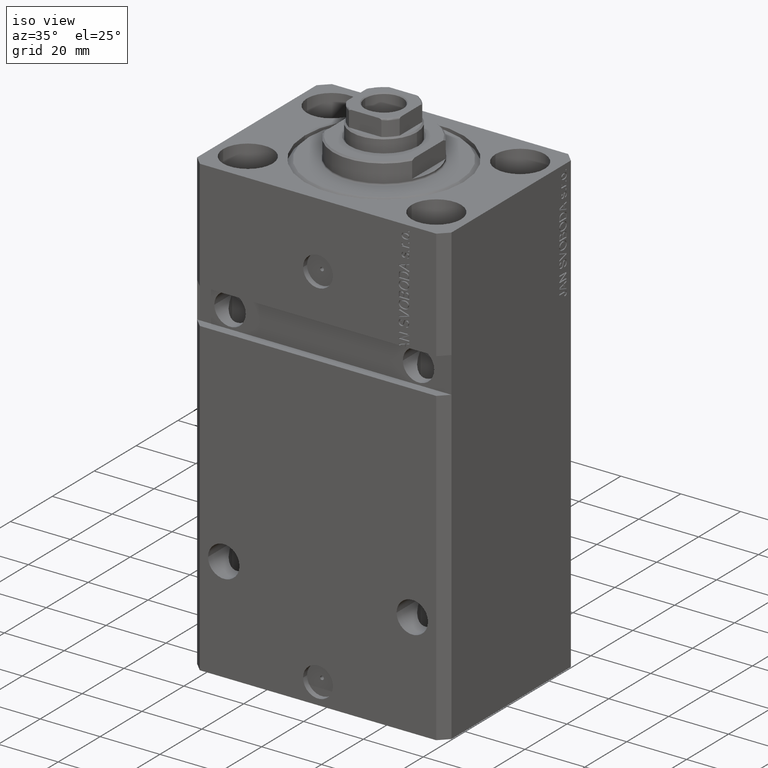
[diagram: clean part render]
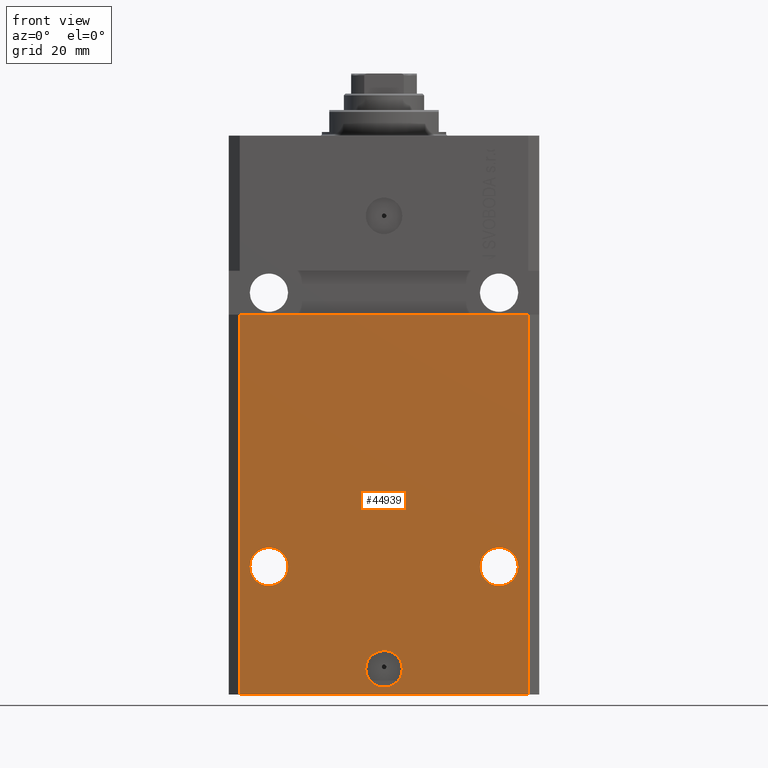
[diagram: tour spotlight — one face highlighted and labeled with its STEP entity id]
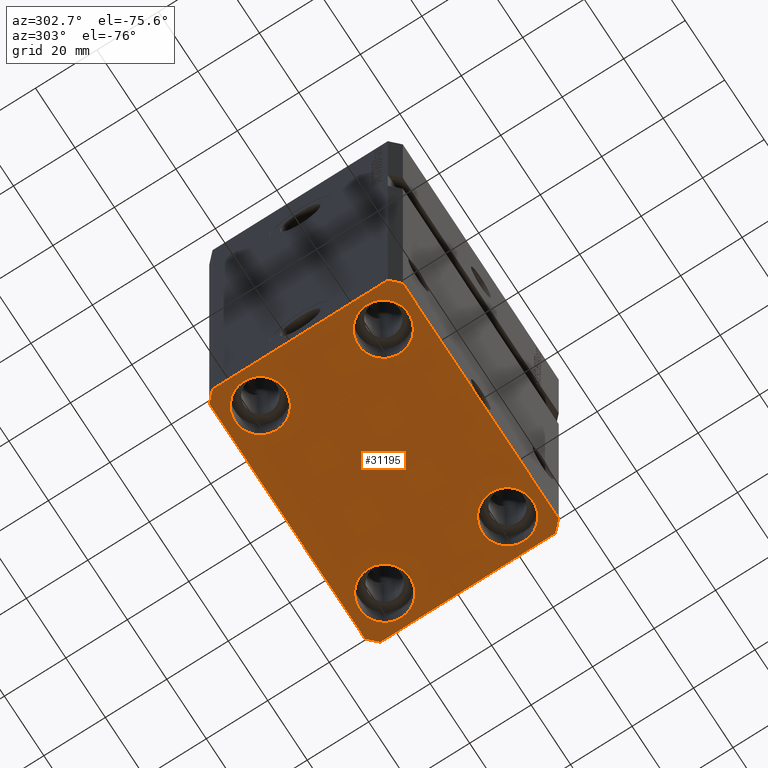
[diagram: tour spotlight — one face highlighted and labeled with its STEP entity id]
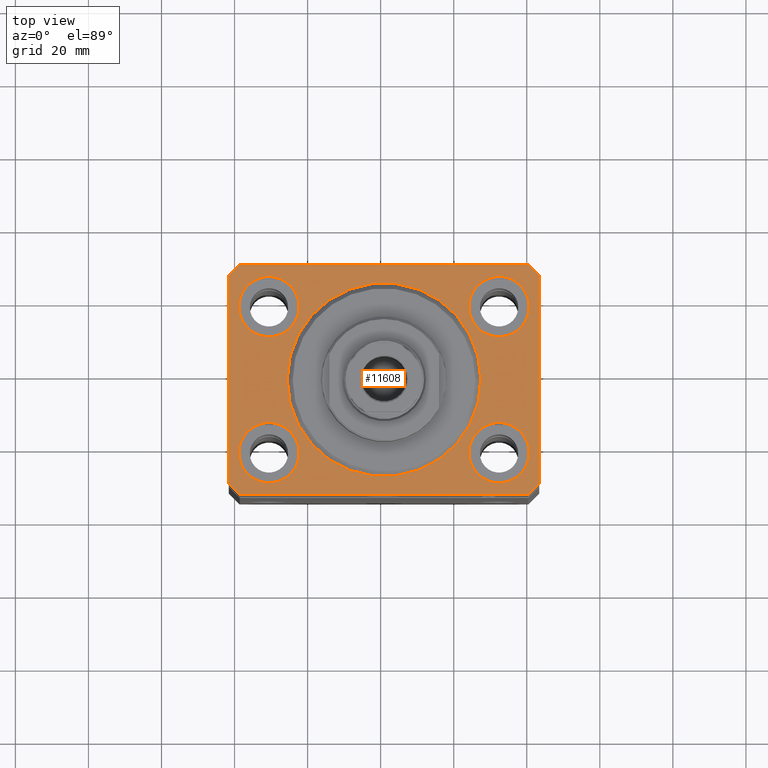
[diagram: tour spotlight — one face highlighted and labeled with its STEP entity id]
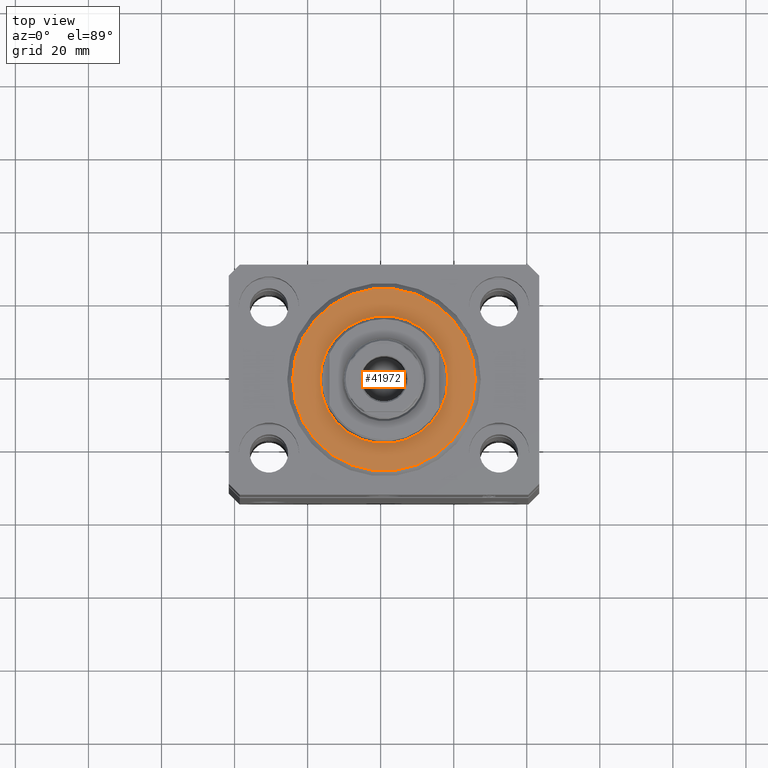
[diagram: tour spotlight — one face highlighted and labeled with its STEP entity id]
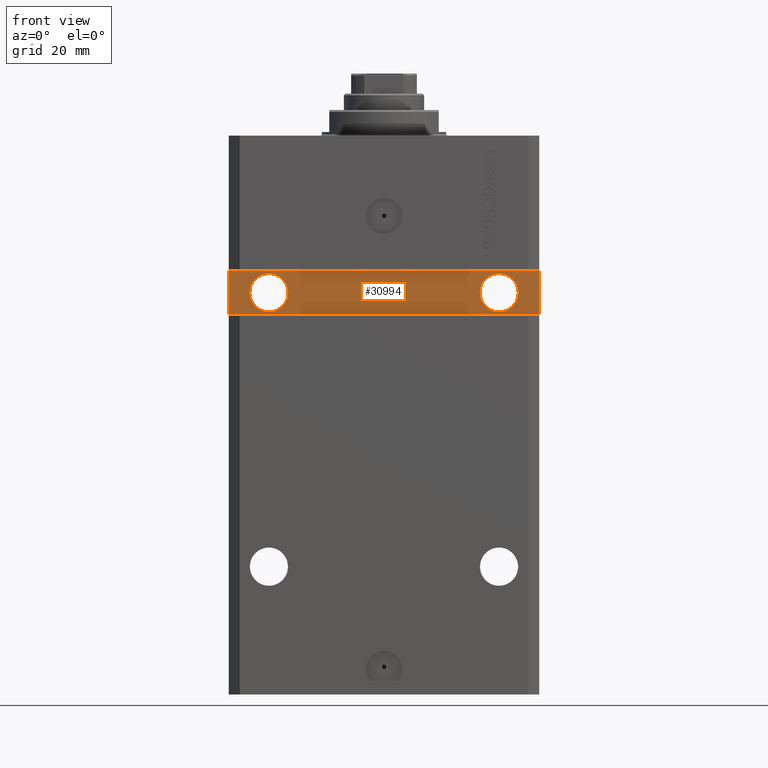
[diagram: tour spotlight — one face highlighted and labeled with its STEP entity id]
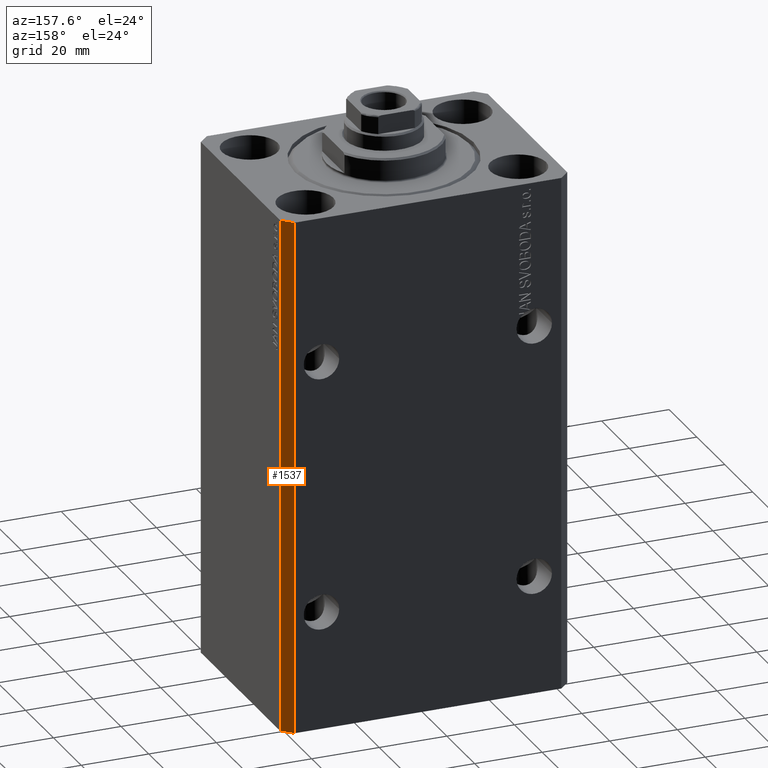
[diagram: tour spotlight — one face highlighted and labeled with its STEP entity id]
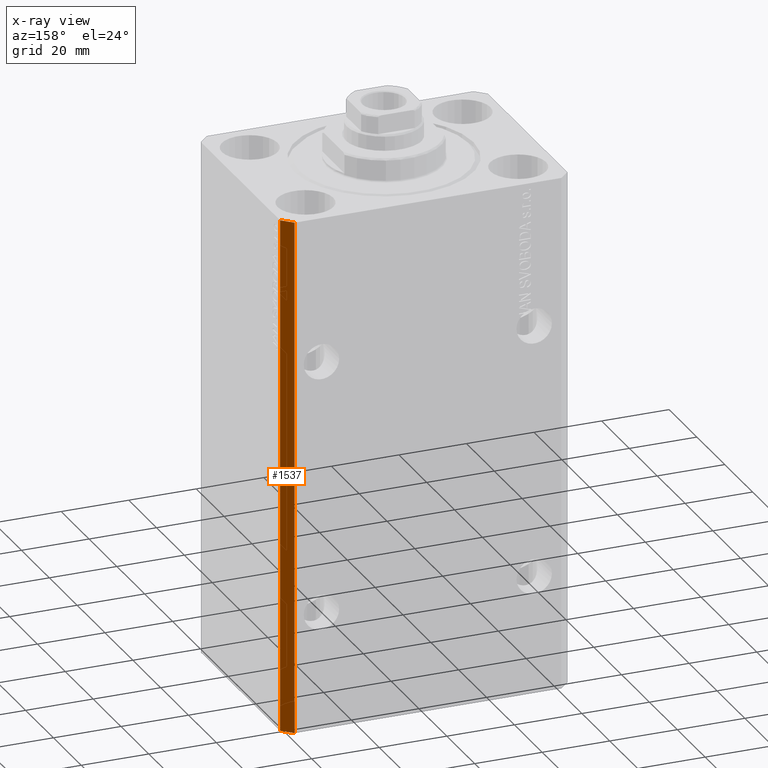
[diagram: x-ray of the same camera — body ghosted, this tour face saturated]
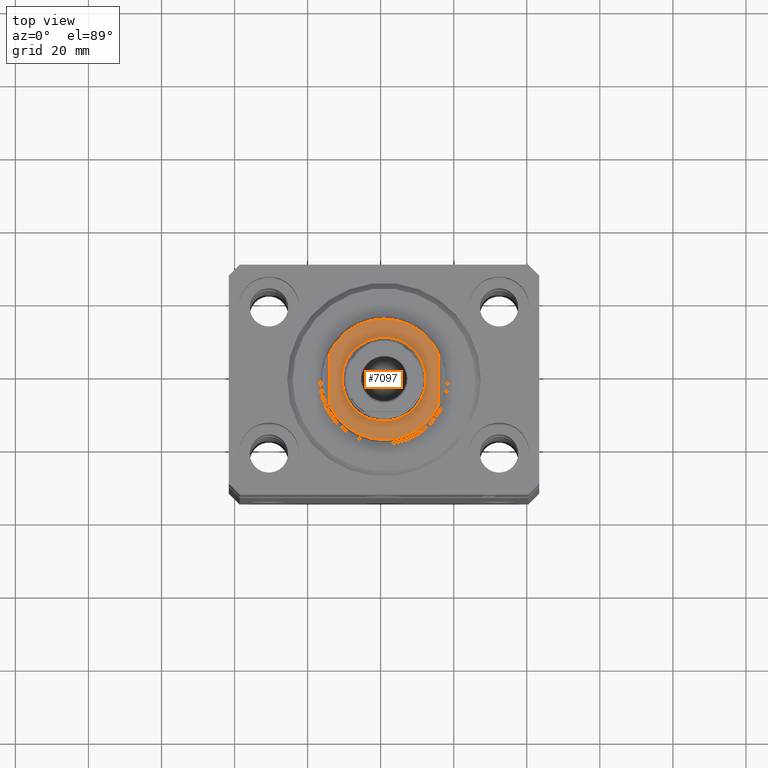
[diagram: tour spotlight — one face highlighted and labeled with its STEP entity id]
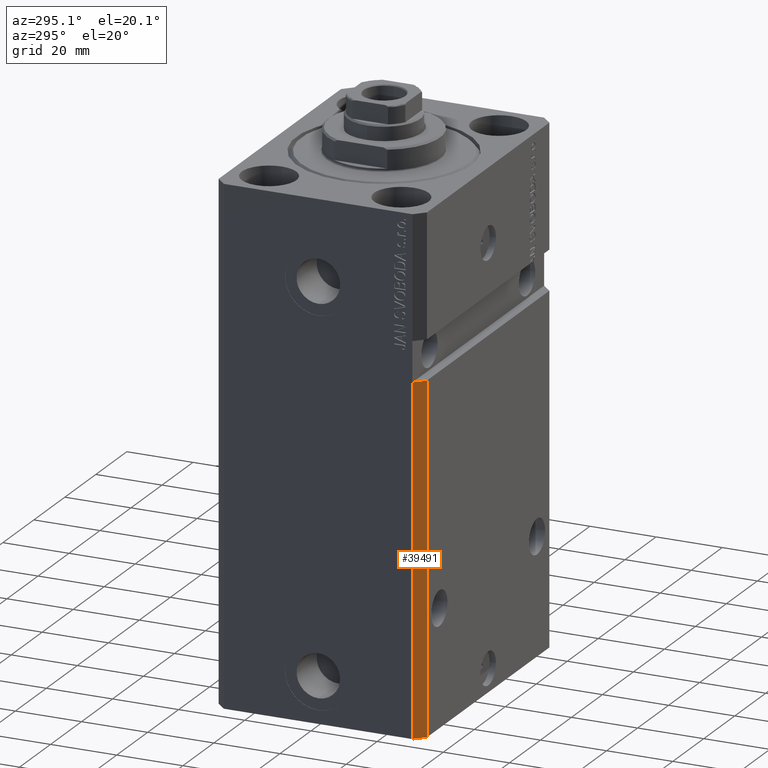
[diagram: tour spotlight — one face highlighted and labeled with its STEP entity id]
A machine part: a face-by-face anatomy tour. The part has 937 B-rep faces; the first image is the clean iso view, then the 8 largest visible faces are spotlighted one at a time (largest first), each with its STEP entity span.

Face 1 — front view, entity #44939. In plain terms, the highlighted planar face has unit normal (0, -1, 0).
Definition (entity closure, byte-faithful):
#939 = CARTESIAN_POINT ( 'NONE',  ( -31.50000000000001421, -31.50000000000000711, -118.0000000000000000 ) ) ;
#2419 = VECTOR ( 'NONE', #2732, 1000.000000000000000 ) ;
#2732 = DIRECTION ( 'NONE',  ( 1.000000000000000000, 1.632680918566406054E-16, 1.632680918566406054E-16 ) ) ;
#2734 = CARTESIAN_POINT ( 'NONE',  ( 36.75000000000001421, -31.49999999999999289, -118.0000000000000000 ) ) ;
#2764 = CARTESIAN_POINT ( 'NONE',  ( -36.75000000000001421, -31.50000000000000711, -118.0000000000000000 ) ) ;
#4612 = DIRECTION ( 'NONE',  ( 1.176083712526788232E-16, -1.000000000000000000, 0.000000000000000000 ) ) ;
#4678 = VERTEX_POINT ( 'NONE', #18374 ) ;
#4978 = VERTEX_POINT ( 'NONE', #15949 ) ;
#5069 = EDGE_CURVE ( 'NONE', #5824, #26687, #30822, .T. ) ;
#5217 = EDGE_CURVE ( 'NONE', #4978, #32308, #20536, .T. ) ;
#5275 = VERTEX_POINT ( 'NONE', #36067 ) ;
#5824 = VERTEX_POINT ( 'NONE', #18770 ) ;
#6177 = CARTESIAN_POINT ( 'NONE',  ( -42.50000000000001421, -31.50000000000000711, -48.99999999999999289 ) ) ;
#6312 = EDGE_CURVE ( 'NONE', #13853, #17347, #24941, .T. ) ;
#6525 = DIRECTION ( 'NONE',  ( 1.000000000000000000, 0.000000000000000000, 0.000000000000000000 ) ) ;
#8092 = EDGE_LOOP ( 'NONE', ( #17875, #25127 ) ) ;
#8599 = PLANE ( 'NONE',  #40025 ) ;
#9418 = ORIENTED_EDGE ( 'NONE', *, *, #42273, .F. ) ;
#9451 = EDGE_LOOP ( 'NONE', ( #44958, #23497 ) ) ;
#9542 = AXIS2_PLACEMENT_3D ( 'NONE', #17978, #31943, #39054 ) ;
#9737 = DIRECTION ( 'NONE',  ( 1.000000000000000000, 0.000000000000000000, 0.000000000000000000 ) ) ;
#10582 = CIRCLE ( 'NONE', #16452, 5.249999999999997335 ) ;
#11522 = CIRCLE ( 'NONE', #22536, 5.000000000000006217 ) ;
#13064 = AXIS2_PLACEMENT_3D ( 'NONE', #43464, #22840, #43012 ) ;
#13150 = EDGE_CURVE ( 'NONE', #4678, #40862, #30988, .T. ) ;
#13853 = VERTEX_POINT ( 'NONE', #31328 ) ;
#13860 = DIRECTION ( 'NONE',  ( 1.176083712526788232E-16, -1.000000000000000000, 0.000000000000000000 ) ) ;
#14676 = VECTOR ( 'NONE', #6525, 1000.000000000000000 ) ;
#15208 = DIRECTION ( 'NONE',  ( 1.176083712526788232E-16, -1.000000000000000000, 0.000000000000000000 ) ) ;
#15949 = CARTESIAN_POINT ( 'NONE',  ( 26.25000000000001776, -31.49999999999999289, -118.0000000000000000 ) ) ;
#16388 = VECTOR ( 'NONE', #27430, 1000.000000000000000 ) ;
#16420 = LINE ( 'NONE', #36811, #43916 ) ;
#16452 = AXIS2_PLACEMENT_3D ( 'NONE', #37519, #27645, #23989 ) ;
#16631 = CARTESIAN_POINT ( 'NONE',  ( -39.50000000000000711, -31.50000000000000000, -153.0000000000000000 ) ) ;
#16908 = ORIENTED_EDGE ( 'NONE', *, *, #5217, .F. ) ;
#17347 = VERTEX_POINT ( 'NONE', #2764 ) ;
#17705 = EDGE_CURVE ( 'NONE', #5275, #34683, #37582, .T. ) ;
#17875 = ORIENTED_EDGE ( 'NONE', *, *, #31976, .F. ) ;
#17978 = CARTESIAN_POINT ( 'NONE',  ( 31.50000000000001421, -31.49999999999999289, -118.0000000000000000 ) ) ;
#18125 = EDGE_CURVE ( 'NONE', #26687, #34683, #42317, .T. ) ;
#18374 = CARTESIAN_POINT ( 'NONE',  ( -5.000000000000006217, -31.50000000000000000, -146.0000000000000000 ) ) ;
#18770 = CARTESIAN_POINT ( 'NONE',  ( -39.50000000000000711, -31.50000000000000000, -153.0000000000000000 ) ) ;
#19021 = ORIENTED_EDGE ( 'NONE', *, *, #17705, .F. ) ;
#19599 = DIRECTION ( 'NONE',  ( 0.000000000000000000, -1.000000000000000000, 0.000000000000000000 ) ) ;
#20536 = CIRCLE ( 'NONE', #9542, 5.249999999999997335 ) ;
#20859 = EDGE_CURVE ( 'NONE', #32308, #4978, #10582, .T. ) ;
#21783 = CARTESIAN_POINT ( 'NONE',  ( 39.50000000000000711, -31.50000000000000000, -153.0000000000000000 ) ) ;
#22536 = AXIS2_PLACEMENT_3D ( 'NONE', #24385, #13860, #9737 ) ;
#22840 = DIRECTION ( 'NONE',  ( 1.176083712526788232E-16, -1.000000000000000000, 0.000000000000000000 ) ) ;
#22844 = DIRECTION ( 'NONE',  ( 0.000000000000000000, 0.000000000000000000, 1.000000000000000000 ) ) ;
#23497 = ORIENTED_EDGE ( 'NONE', *, *, #33634, .F. ) ;
#23989 = DIRECTION ( 'NONE',  ( 1.000000000000000000, 0.000000000000000000, 0.000000000000000000 ) ) ;
#24018 = CIRCLE ( 'NONE', #13064, 5.249999999999997335 ) ;
#24385 = CARTESIAN_POINT ( 'NONE',  ( 0.000000000000000000, -31.50000000000000000, -146.0000000000000000 ) ) ;
#24941 = CIRCLE ( 'NONE', #43995, 5.249999999999997335 ) ;
#25127 = ORIENTED_EDGE ( 'NONE', *, *, #13150, .F. ) ;
#26243 = FACE_BOUND ( 'NONE', #38565, .T. ) ;
#26466 = FACE_BOUND ( 'NONE', #8092, .T. ) ;
#26687 = VERTEX_POINT ( 'NONE', #21783 ) ;
#27323 = AXIS2_PLACEMENT_3D ( 'NONE', #40189, #15208, #33307 ) ;
#27430 = DIRECTION ( 'NONE',  ( 0.000000000000000000, 0.000000000000000000, 1.000000000000000000 ) ) ;
#27645 = DIRECTION ( 'NONE',  ( 1.176083712526788232E-16, -1.000000000000000000, 0.000000000000000000 ) ) ;
#27852 = ORIENTED_EDGE ( 'NONE', *, *, #18125, .T. ) ;
#28639 = ORIENTED_EDGE ( 'NONE', *, *, #20859, .F. ) ;
#30822 = LINE ( 'NONE', #16631, #14676 ) ;
#30988 = CIRCLE ( 'NONE', #27323, 5.000000000000006217 ) ;
#31328 = CARTESIAN_POINT ( 'NONE',  ( -26.25000000000001776, -31.50000000000000711, -118.0000000000000000 ) ) ;
#31943 = DIRECTION ( 'NONE',  ( 1.176083712526788232E-16, -1.000000000000000000, 0.000000000000000000 ) ) ;
#31976 = EDGE_CURVE ( 'NONE', #40862, #4678, #11522, .T. ) ;
#32041 = CARTESIAN_POINT ( 'NONE',  ( 5.000000000000006217, -31.50000000000000000, -146.0000000000000000 ) ) ;
#32308 = VERTEX_POINT ( 'NONE', #2734 ) ;
#33307 = DIRECTION ( 'NONE',  ( 1.000000000000000000, 0.000000000000000000, 0.000000000000000000 ) ) ;
#33348 = CARTESIAN_POINT ( 'NONE',  ( -39.50000000000000711, -31.50000000000000000, -153.0000000000000000 ) ) ;
#33568 = DIRECTION ( 'NONE',  ( 0.000000000000000000, -0.000000000000000000, -1.000000000000000000 ) ) ;
#33634 = EDGE_CURVE ( 'NONE', #17347, #13853, #24018, .T. ) ;
#34683 = VERTEX_POINT ( 'NONE', #41496 ) ;
#36067 = CARTESIAN_POINT ( 'NONE',  ( -39.50000000000000000, -31.50000000000000711, -48.99999999999999289 ) ) ;
#36811 = CARTESIAN_POINT ( 'NONE',  ( -39.50000000000000711, -31.50000000000000000, -153.0000000000000000 ) ) ;
#37519 = CARTESIAN_POINT ( 'NONE',  ( 31.50000000000001421, -31.49999999999999289, -118.0000000000000000 ) ) ;
#37582 = LINE ( 'NONE', #6177, #2419 ) ;
#37783 = ORIENTED_EDGE ( 'NONE', *, *, #5069, .T. ) ;
#38565 = EDGE_LOOP ( 'NONE', ( #28639, #16908 ) ) ;
#38881 = CARTESIAN_POINT ( 'NONE',  ( 39.50000000000000711, -31.50000000000000000, -153.0000000000000000 ) ) ;
#39054 = DIRECTION ( 'NONE',  ( 1.000000000000000000, 0.000000000000000000, 0.000000000000000000 ) ) ;
#39682 = DIRECTION ( 'NONE',  ( -1.000000000000000000, 0.000000000000000000, 0.000000000000000000 ) ) ;
#39683 = EDGE_LOOP ( 'NONE', ( #19021, #9418, #37783, #27852 ) ) ;
#40025 = AXIS2_PLACEMENT_3D ( 'NONE', #33348, #19599, #33568 ) ;
#40189 = CARTESIAN_POINT ( 'NONE',  ( 0.000000000000000000, -31.50000000000000000, -146.0000000000000000 ) ) ;
#40229 = FACE_BOUND ( 'NONE', #9451, .T. ) ;
#40451 = FACE_OUTER_BOUND ( 'NONE', #39683, .T. ) ;
#40862 = VERTEX_POINT ( 'NONE', #32041 ) ;
#41496 = CARTESIAN_POINT ( 'NONE',  ( 39.50000000000000000, -31.49999999999999289, -48.99999999999997868 ) ) ;
#42273 = EDGE_CURVE ( 'NONE', #5824, #5275, #16420, .T. ) ;
#42317 = LINE ( 'NONE', #38881, #16388 ) ;
#43012 = DIRECTION ( 'NONE',  ( -1.000000000000000000, 0.000000000000000000, 0.000000000000000000 ) ) ;
#43464 = CARTESIAN_POINT ( 'NONE',  ( -31.50000000000001421, -31.50000000000000711, -118.0000000000000000 ) ) ;
#43916 = VECTOR ( 'NONE', #22844, 1000.000000000000000 ) ;
#43995 = AXIS2_PLACEMENT_3D ( 'NONE', #939, #4612, #39682 ) ;
#44939 = ADVANCED_FACE ( 'NONE', ( #26466, #26243, #40229, #40451 ), #8599, .T. ) ;
#44958 = ORIENTED_EDGE ( 'NONE', *, *, #6312, .F. ) ;

Face 2 — auxiliary view, entity #31195. In plain terms, the highlighted planar face has unit normal (0, 0, 1).
Definition (entity closure, byte-faithful):
#461 = CARTESIAN_POINT ( 'NONE',  ( -23.25000000000000000, 20.00000000000000000, -153.0000000000000000 ) ) ;
#853 = EDGE_LOOP ( 'NONE', ( #40143, #8975 ) ) ;
#1226 = EDGE_CURVE ( 'NONE', #3827, #41011, #12463, .T. ) ;
#1477 = EDGE_CURVE ( 'NONE', #14347, #40042, #10217, .T. ) ;
#1710 = EDGE_CURVE ( 'NONE', #24764, #19628, #13210, .T. ) ;
#1770 = CARTESIAN_POINT ( 'NONE',  ( 39.74999999999999289, 20.00000000000001066, -153.0000000000000000 ) ) ;
#2466 = CARTESIAN_POINT ( 'NONE',  ( 39.50000000000000711, -31.50000000000000000, -153.0000000000000000 ) ) ;
#2469 = VERTEX_POINT ( 'NONE', #27862 ) ;
#2585 = CIRCLE ( 'NONE', #26735, 8.250000000000000000 ) ;
#2951 = FACE_BOUND ( 'NONE', #853, .T. ) ;
#3529 = EDGE_LOOP ( 'NONE', ( #44946, #19899, #24071, #29817, #21254, #19536, #43392, #15247 ) ) ;
#3827 = VERTEX_POINT ( 'NONE', #461 ) ;
#4716 = LINE ( 'NONE', #43457, #39763 ) ;
#4951 = CARTESIAN_POINT ( 'NONE',  ( -42.50000000000000000, 28.50000000000000000, -153.0000000000000000 ) ) ;
#5069 = EDGE_CURVE ( 'NONE', #5824, #26687, #30822, .T. ) ;
#5237 = LINE ( 'NONE', #2466, #42332 ) ;
#5824 = VERTEX_POINT ( 'NONE', #18770 ) ;
#6043 = CARTESIAN_POINT ( 'NONE',  ( -39.50000000000000711, 31.50000000000000000, -153.0000000000000000 ) ) ;
#6169 = DIRECTION ( 'NONE',  ( 0.000000000000000000, 0.000000000000000000, 1.000000000000000000 ) ) ;
#6525 = DIRECTION ( 'NONE',  ( 1.000000000000000000, 0.000000000000000000, 0.000000000000000000 ) ) ;
#6694 = DIRECTION ( 'NONE',  ( -0.000000000000000000, -0.000000000000000000, 1.000000000000000000 ) ) ;
#6814 = CIRCLE ( 'NONE', #23640, 8.249999999999992895 ) ;
#7663 = EDGE_CURVE ( 'NONE', #14108, #30399, #42550, .T. ) ;
#8620 = DIRECTION ( 'NONE',  ( 0.000000000000000000, -1.000000000000000000, 0.000000000000000000 ) ) ;
#8845 = DIRECTION ( 'NONE',  ( 1.000000000000000000, 0.000000000000000000, 0.000000000000000000 ) ) ;
#8975 = ORIENTED_EDGE ( 'NONE', *, *, #1226, .T. ) ;
#9165 = DIRECTION ( 'NONE',  ( 1.000000000000000000, 0.000000000000000000, 0.000000000000000000 ) ) ;
#9338 = CIRCLE ( 'NONE', #27611, 8.249999999999992895 ) ;
#9443 = ORIENTED_EDGE ( 'NONE', *, *, #37160, .T. ) ;
#9544 = AXIS2_PLACEMENT_3D ( 'NONE', #26386, #15859, #29825 ) ;
#10013 = CARTESIAN_POINT ( 'NONE',  ( -39.75000000000000000, 20.00000000000000000, -153.0000000000000000 ) ) ;
#10089 = DIRECTION ( 'NONE',  ( 1.000000000000000000, 0.000000000000000000, 0.000000000000000000 ) ) ;
#10217 = LINE ( 'NONE', #20086, #10296 ) ;
#10296 = VECTOR ( 'NONE', #17094, 1000.000000000000000 ) ;
#10540 = DIRECTION ( 'NONE',  ( -0.000000000000000000, -0.000000000000000000, 1.000000000000000000 ) ) ;
#12463 = CIRCLE ( 'NONE', #38065, 8.250000000000000000 ) ;
#12637 = ORIENTED_EDGE ( 'NONE', *, *, #23037, .T. ) ;
#13210 = CIRCLE ( 'NONE', #9544, 8.249999999999992895 ) ;
#14108 = VERTEX_POINT ( 'NONE', #14263 ) ;
#14263 = CARTESIAN_POINT ( 'NONE',  ( 39.74999999999999289, -20.00000000000000000, -153.0000000000000000 ) ) ;
#14347 = VERTEX_POINT ( 'NONE', #41937 ) ;
#14676 = VECTOR ( 'NONE', #6525, 1000.000000000000000 ) ;
#14793 = ORIENTED_EDGE ( 'NONE', *, *, #17398, .T. ) ;
#15247 = ORIENTED_EDGE ( 'NONE', *, *, #33340, .F. ) ;
#15859 = DIRECTION ( 'NONE',  ( -0.000000000000000000, -0.000000000000000000, 1.000000000000000000 ) ) ;
#15902 = DIRECTION ( 'NONE',  ( -0.7071067811865356934, 0.7071067811865594521, 0.000000000000000000 ) ) ;
#16158 = VERTEX_POINT ( 'NONE', #38635 ) ;
#16631 = CARTESIAN_POINT ( 'NONE',  ( -39.50000000000000711, -31.50000000000000000, -153.0000000000000000 ) ) ;
#16734 = VECTOR ( 'NONE', #28397, 1000.000000000000000 ) ;
#17094 = DIRECTION ( 'NONE',  ( -1.000000000000000000, 0.000000000000000000, 0.000000000000000000 ) ) ;
#17385 = AXIS2_PLACEMENT_3D ( 'NONE', #19711, #6169, #43390 ) ;
#17398 = EDGE_CURVE ( 'NONE', #30399, #14108, #6814, .T. ) ;
#17871 = CARTESIAN_POINT ( 'NONE',  ( -39.50000000000000711, 31.50000000000000000, -153.0000000000000000 ) ) ;
#17969 = ORIENTED_EDGE ( 'NONE', *, *, #7663, .T. ) ;
#18217 = EDGE_CURVE ( 'NONE', #45126, #5824, #4716, .T. ) ;
#18770 = CARTESIAN_POINT ( 'NONE',  ( -39.50000000000000711, -31.50000000000000000, -153.0000000000000000 ) ) ;
#18866 = PLANE ( 'NONE',  #17385 ) ;
#19361 = CIRCLE ( 'NONE', #26668, 8.250000000000000000 ) ;
#19393 = CARTESIAN_POINT ( 'NONE',  ( -31.50000000000000000, -20.00000000000000000, -153.0000000000000000 ) ) ;
#19536 = ORIENTED_EDGE ( 'NONE', *, *, #18217, .F. ) ;
#19618 = EDGE_CURVE ( 'NONE', #16158, #14347, #41098, .T. ) ;
#19628 = VERTEX_POINT ( 'NONE', #40641 ) ;
#19711 = CARTESIAN_POINT ( 'NONE',  ( 0.000000000000000000, 0.000000000000000000, -153.0000000000000000 ) ) ;
#19899 = ORIENTED_EDGE ( 'NONE', *, *, #19618, .F. ) ;
#20028 = EDGE_CURVE ( 'NONE', #41011, #3827, #19361, .T. ) ;
#20086 = CARTESIAN_POINT ( 'NONE',  ( 39.50000000000056843, 31.50000000000000000, -153.0000000000000000 ) ) ;
#21254 = ORIENTED_EDGE ( 'NONE', *, *, #5069, .F. ) ;
#21783 = CARTESIAN_POINT ( 'NONE',  ( 39.50000000000000711, -31.50000000000000000, -153.0000000000000000 ) ) ;
#22010 = DIRECTION ( 'NONE',  ( -0.000000000000000000, -0.000000000000000000, 1.000000000000000000 ) ) ;
#23037 = EDGE_CURVE ( 'NONE', #40772, #30175, #2585, .T. ) ;
#23640 = AXIS2_PLACEMENT_3D ( 'NONE', #36791, #37244, #26249 ) ;
#24000 = ORIENTED_EDGE ( 'NONE', *, *, #31188, .T. ) ;
#24071 = ORIENTED_EDGE ( 'NONE', *, *, #43694, .F. ) ;
#24764 = VERTEX_POINT ( 'NONE', #1770 ) ;
#25141 = DIRECTION ( 'NONE',  ( 1.000000000000000000, 0.000000000000000000, 0.000000000000000000 ) ) ;
#25301 = EDGE_LOOP ( 'NONE', ( #24000, #29153 ) ) ;
#26249 = DIRECTION ( 'NONE',  ( 1.000000000000000000, 0.000000000000000000, 0.000000000000000000 ) ) ;
#26262 = LINE ( 'NONE', #4951, #33566 ) ;
#26386 = CARTESIAN_POINT ( 'NONE',  ( 31.50000000000000000, 20.00000000000001066, -153.0000000000000000 ) ) ;
#26545 = DIRECTION ( 'NONE',  ( 0.7071067811865483499, 0.7071067811865466846, 0.000000000000000000 ) ) ;
#26668 = AXIS2_PLACEMENT_3D ( 'NONE', #41712, #10540, #10089 ) ;
#26687 = VERTEX_POINT ( 'NONE', #21783 ) ;
#26735 = AXIS2_PLACEMENT_3D ( 'NONE', #28865, #22010, #35982 ) ;
#27023 = CARTESIAN_POINT ( 'NONE',  ( 31.50000000000000000, 20.00000000000001066, -153.0000000000000000 ) ) ;
#27160 = AXIS2_PLACEMENT_3D ( 'NONE', #35962, #6694, #45212 ) ;
#27611 = AXIS2_PLACEMENT_3D ( 'NONE', #27023, #44688, #9165 ) ;
#27862 = CARTESIAN_POINT ( 'NONE',  ( -42.50000000000000000, 28.50000000000000000, -153.0000000000000000 ) ) ;
#27974 = CARTESIAN_POINT ( 'NONE',  ( 42.50000000000000711, -28.50000000000000355, -153.0000000000000000 ) ) ;
#28133 = CARTESIAN_POINT ( 'NONE',  ( -31.50000000000000000, 20.00000000000000000, -153.0000000000000000 ) ) ;
#28397 = DIRECTION ( 'NONE',  ( -0.7071067811865471286, -0.7071067811865479058, 0.000000000000000000 ) ) ;
#28580 = DIRECTION ( 'NONE',  ( -0.000000000000000000, -0.000000000000000000, 1.000000000000000000 ) ) ;
#28865 = CARTESIAN_POINT ( 'NONE',  ( -31.50000000000000000, -20.00000000000000000, -153.0000000000000000 ) ) ;
#28876 = EDGE_LOOP ( 'NONE', ( #14793, #17969 ) ) ;
#29153 = ORIENTED_EDGE ( 'NONE', *, *, #1710, .T. ) ;
#29307 = VECTOR ( 'NONE', #42631, 1000.000000000000000 ) ;
#29817 = ORIENTED_EDGE ( 'NONE', *, *, #38954, .F. ) ;
#29825 = DIRECTION ( 'NONE',  ( 1.000000000000000000, 0.000000000000000000, 0.000000000000000000 ) ) ;
#29919 = DIRECTION ( 'NONE',  ( -0.000000000000000000, -0.000000000000000000, 1.000000000000000000 ) ) ;
#30096 = CARTESIAN_POINT ( 'NONE',  ( 42.50000000000051870, 28.49999999999995381, -153.0000000000000000 ) ) ;
#30175 = VERTEX_POINT ( 'NONE', #38866 ) ;
#30399 = VERTEX_POINT ( 'NONE', #42421 ) ;
#30822 = LINE ( 'NONE', #16631, #14676 ) ;
#31188 = EDGE_CURVE ( 'NONE', #19628, #24764, #9338, .T. ) ;
#31195 = ADVANCED_FACE ( 'NONE', ( #37125, #40788, #41241, #2951, #41018 ), #18866, .F. ) ;
#31636 = LINE ( 'NONE', #27974, #29307 ) ;
#32914 = CIRCLE ( 'NONE', #40967, 8.250000000000000000 ) ;
#33340 = EDGE_CURVE ( 'NONE', #40042, #2469, #35280, .T. ) ;
#33566 = VECTOR ( 'NONE', #8620, 1000.000000000000000 ) ;
#34559 = CARTESIAN_POINT ( 'NONE',  ( 42.50000000000000711, -28.50000000000000355, -153.0000000000000000 ) ) ;
#34704 = CARTESIAN_POINT ( 'NONE',  ( -42.50000000000000000, -28.50000000000000000, -153.0000000000000000 ) ) ;
#34948 = EDGE_LOOP ( 'NONE', ( #12637, #9443 ) ) ;
#35280 = LINE ( 'NONE', #17871, #16734 ) ;
#35962 = CARTESIAN_POINT ( 'NONE',  ( 31.50000000000000000, -20.00000000000000000, -153.0000000000000000 ) ) ;
#35982 = DIRECTION ( 'NONE',  ( 1.000000000000000000, 0.000000000000000000, 0.000000000000000000 ) ) ;
#36159 = CARTESIAN_POINT ( 'NONE',  ( -39.75000000000000000, -20.00000000000000000, -153.0000000000000000 ) ) ;
#36347 = DIRECTION ( 'NONE',  ( 0.7071067811865471286, -0.7071067811865479058, 0.000000000000000000 ) ) ;
#36791 = CARTESIAN_POINT ( 'NONE',  ( 31.50000000000000000, -20.00000000000000000, -153.0000000000000000 ) ) ;
#37125 = FACE_BOUND ( 'NONE', #34948, .T. ) ;
#37160 = EDGE_CURVE ( 'NONE', #30175, #40772, #32914, .T. ) ;
#37244 = DIRECTION ( 'NONE',  ( -0.000000000000000000, -0.000000000000000000, 1.000000000000000000 ) ) ;
#37924 = EDGE_CURVE ( 'NONE', #2469, #45126, #26262, .T. ) ;
#38065 = AXIS2_PLACEMENT_3D ( 'NONE', #28133, #28580, #25141 ) ;
#38635 = CARTESIAN_POINT ( 'NONE',  ( 42.50000000000051870, 28.49999999999995381, -153.0000000000000000 ) ) ;
#38866 = CARTESIAN_POINT ( 'NONE',  ( -23.25000000000000000, -20.00000000000000000, -153.0000000000000000 ) ) ;
#38954 = EDGE_CURVE ( 'NONE', #26687, #44739, #5237, .T. ) ;
#39763 = VECTOR ( 'NONE', #36347, 1000.000000000000000 ) ;
#40042 = VERTEX_POINT ( 'NONE', #6043 ) ;
#40143 = ORIENTED_EDGE ( 'NONE', *, *, #20028, .T. ) ;
#40641 = CARTESIAN_POINT ( 'NONE',  ( 23.25000000000000355, 20.00000000000001066, -153.0000000000000000 ) ) ;
#40772 = VERTEX_POINT ( 'NONE', #36159 ) ;
#40788 = FACE_BOUND ( 'NONE', #28876, .T. ) ;
#40967 = AXIS2_PLACEMENT_3D ( 'NONE', #19393, #29919, #8845 ) ;
#41011 = VERTEX_POINT ( 'NONE', #10013 ) ;
#41018 = FACE_OUTER_BOUND ( 'NONE', #3529, .T. ) ;
#41098 = LINE ( 'NONE', #30096, #43468 ) ;
#41241 = FACE_BOUND ( 'NONE', #25301, .T. ) ;
#41712 = CARTESIAN_POINT ( 'NONE',  ( -31.50000000000000000, 20.00000000000000000, -153.0000000000000000 ) ) ;
#41937 = CARTESIAN_POINT ( 'NONE',  ( 39.50000000000056843, 31.50000000000000000, -153.0000000000000000 ) ) ;
#42332 = VECTOR ( 'NONE', #26545, 1000.000000000000000 ) ;
#42421 = CARTESIAN_POINT ( 'NONE',  ( 23.25000000000000355, -20.00000000000000000, -153.0000000000000000 ) ) ;
#42550 = CIRCLE ( 'NONE', #27160, 8.249999999999992895 ) ;
#42631 = DIRECTION ( 'NONE',  ( 8.886653596232072440E-15, 1.000000000000000000, 0.000000000000000000 ) ) ;
#43390 = DIRECTION ( 'NONE',  ( 1.000000000000000000, 0.000000000000000000, -0.000000000000000000 ) ) ;
#43392 = ORIENTED_EDGE ( 'NONE', *, *, #37924, .F. ) ;
#43457 = CARTESIAN_POINT ( 'NONE',  ( -42.50000000000000000, -28.50000000000000000, -153.0000000000000000 ) ) ;
#43468 = VECTOR ( 'NONE', #15902, 1000.000000000000114 ) ;
#43694 = EDGE_CURVE ( 'NONE', #44739, #16158, #31636, .T. ) ;
#44688 = DIRECTION ( 'NONE',  ( -0.000000000000000000, -0.000000000000000000, 1.000000000000000000 ) ) ;
#44739 = VERTEX_POINT ( 'NONE', #34559 ) ;
#44946 = ORIENTED_EDGE ( 'NONE', *, *, #1477, .F. ) ;
#45126 = VERTEX_POINT ( 'NONE', #34704 ) ;
#45212 = DIRECTION ( 'NONE',  ( 1.000000000000000000, 0.000000000000000000, 0.000000000000000000 ) ) ;

Face 3 — top view, entity #11608. In plain terms, the highlighted planar face has unit normal (0, 0, 1).
Definition (entity closure, byte-faithful):
#34 = VERTEX_POINT ( 'NONE', #33440 ) ;
#66 = LINE ( 'NONE', #14068, #11778 ) ;
#183 = CARTESIAN_POINT ( 'NONE',  ( 42.50000000000000711, -28.50000000000000355, 0.000000000000000000 ) ) ;
#339 = ORIENTED_EDGE ( 'NONE', *, *, #19844, .F. ) ;
#480 = DIRECTION ( 'NONE',  ( 1.000000000000000000, 0.000000000000000000, 0.000000000000000000 ) ) ;
#666 = CARTESIAN_POINT ( 'NONE',  ( -39.50000000000000711, -31.50000000000000000, 0.000000000000000000 ) ) ;
#1343 = LINE ( 'NONE', #666, #24195 ) ;
#1357 = VERTEX_POINT ( 'NONE', #5407 ) ;
#1491 = DIRECTION ( 'NONE',  ( 1.000000000000000000, 0.000000000000000000, 0.000000000000000000 ) ) ;
#2023 = EDGE_CURVE ( 'NONE', #33297, #44818, #1343, .T. ) ;
#2096 = CARTESIAN_POINT ( 'NONE',  ( 39.74999999999999289, 20.00000000000001066, 0.000000000000000000 ) ) ;
#2822 = CARTESIAN_POINT ( 'NONE',  ( 0.000000000000000000, 0.000000000000000000, 0.000000000000000000 ) ) ;
#3471 = EDGE_CURVE ( 'NONE', #34, #1357, #5180, .T. ) ;
#4409 = CIRCLE ( 'NONE', #10277, 26.50000000000000355 ) ;
#4446 = EDGE_LOOP ( 'NONE', ( #14715, #38361 ) ) ;
#4742 = VERTEX_POINT ( 'NONE', #16057 ) ;
#4764 = EDGE_LOOP ( 'NONE', ( #32472, #20779 ) ) ;
#5180 = CIRCLE ( 'NONE', #24871, 8.250000000000000000 ) ;
#5301 = AXIS2_PLACEMENT_3D ( 'NONE', #2822, #34687, #27798 ) ;
#5407 = CARTESIAN_POINT ( 'NONE',  ( -39.75000000000000000, -20.00000000000000000, 0.000000000000000000 ) ) ;
#6159 = AXIS2_PLACEMENT_3D ( 'NONE', #28907, #42668, #480 ) ;
#6330 = VERTEX_POINT ( 'NONE', #31669 ) ;
#6373 = DIRECTION ( 'NONE',  ( 0.7071067811865471286, -0.7071067811865479058, 0.000000000000000000 ) ) ;
#6597 = LINE ( 'NONE', #24019, #39863 ) ;
#6715 = FACE_OUTER_BOUND ( 'NONE', #22427, .T. ) ;
#7167 = PLANE ( 'NONE',  #5301 ) ;
#7172 = CARTESIAN_POINT ( 'NONE',  ( 0.000000000000000000, 0.000000000000000000, 0.000000000000000000 ) ) ;
#7288 = ORIENTED_EDGE ( 'NONE', *, *, #28811, .T. ) ;
#7568 = LINE ( 'NONE', #39416, #40709 ) ;
#7634 = CARTESIAN_POINT ( 'NONE',  ( -42.50000000000000000, 28.50000000000000000, 0.000000000000000000 ) ) ;
#7652 = CARTESIAN_POINT ( 'NONE',  ( 39.50000000000056843, 31.50000000000000000, 0.000000000000000000 ) ) ;
#8344 = EDGE_LOOP ( 'NONE', ( #11503, #20567 ) ) ;
#8415 = EDGE_LOOP ( 'NONE', ( #13827, #15085 ) ) ;
#9733 = EDGE_CURVE ( 'NONE', #35171, #24927, #16275, .T. ) ;
#10043 = EDGE_LOOP ( 'NONE', ( #18074, #339 ) ) ;
#10167 = FACE_BOUND ( 'NONE', #4446, .T. ) ;
#10212 = CIRCLE ( 'NONE', #45362, 26.50000000000000355 ) ;
#10277 = AXIS2_PLACEMENT_3D ( 'NONE', #39742, #15684, #29194 ) ;
#10395 = DIRECTION ( 'NONE',  ( 0.000000000000000000, 0.000000000000000000, 1.000000000000000000 ) ) ;
#10748 = DIRECTION ( 'NONE',  ( 0.7071067811865483499, 0.7071067811865466846, 0.000000000000000000 ) ) ;
#10888 = VECTOR ( 'NONE', #37547, 1000.000000000000000 ) ;
#10954 = EDGE_CURVE ( 'NONE', #18277, #18501, #22741, .T. ) ;
#11503 = ORIENTED_EDGE ( 'NONE', *, *, #3471, .F. ) ;
#11608 = ADVANCED_FACE ( 'NONE', ( #13839, #10167, #24363, #45237, #27571, #6715 ), #7167, .T. ) ;
#11778 = VECTOR ( 'NONE', #44793, 1000.000000000000000 ) ;
#11808 = VERTEX_POINT ( 'NONE', #21840 ) ;
#12023 = VECTOR ( 'NONE', #21625, 1000.000000000000000 ) ;
#12631 = DIRECTION ( 'NONE',  ( 1.000000000000000000, 0.000000000000000000, 0.000000000000000000 ) ) ;
#12889 = EDGE_CURVE ( 'NONE', #38923, #40343, #17062, .T. ) ;
#13030 = AXIS2_PLACEMENT_3D ( 'NONE', #21080, #45149, #27711 ) ;
#13314 = CARTESIAN_POINT ( 'NONE',  ( 31.50000000000000000, -20.00000000000000000, 0.000000000000000000 ) ) ;
#13673 = DIRECTION ( 'NONE',  ( 0.000000000000000000, 0.000000000000000000, 1.000000000000000000 ) ) ;
#13827 = ORIENTED_EDGE ( 'NONE', *, *, #36211, .F. ) ;
#13839 = FACE_BOUND ( 'NONE', #8344, .T. ) ;
#14068 = CARTESIAN_POINT ( 'NONE',  ( 39.50000000000056843, 31.50000000000000000, 0.000000000000000000 ) ) ;
#14715 = ORIENTED_EDGE ( 'NONE', *, *, #9733, .F. ) ;
#15085 = ORIENTED_EDGE ( 'NONE', *, *, #12889, .F. ) ;
#15127 = DIRECTION ( 'NONE',  ( -0.7071067811865471286, -0.7071067811865479058, 0.000000000000000000 ) ) ;
#15634 = CARTESIAN_POINT ( 'NONE',  ( 42.50000000000051870, 28.49999999999995381, 0.000000000000000000 ) ) ;
#15684 = DIRECTION ( 'NONE',  ( 0.000000000000000000, 0.000000000000000000, 1.000000000000000000 ) ) ;
#16057 = CARTESIAN_POINT ( 'NONE',  ( -42.50000000000000000, 28.50000000000000000, 0.000000000000000000 ) ) ;
#16275 = CIRCLE ( 'NONE', #38229, 8.249999999999992895 ) ;
#16951 = EDGE_CURVE ( 'NONE', #24927, #35171, #17069, .T. ) ;
#17012 = CARTESIAN_POINT ( 'NONE',  ( -31.50000000000000000, 20.00000000000000000, 0.000000000000000000 ) ) ;
#17055 = CARTESIAN_POINT ( 'NONE',  ( -31.50000000000000000, -20.00000000000000000, 0.000000000000000000 ) ) ;
#17062 = CIRCLE ( 'NONE', #22207, 8.249999999999992895 ) ;
#17069 = CIRCLE ( 'NONE', #33157, 8.249999999999992895 ) ;
#17369 = CARTESIAN_POINT ( 'NONE',  ( 39.50000000000000711, -31.50000000000000000, 0.000000000000000000 ) ) ;
#18074 = ORIENTED_EDGE ( 'NONE', *, *, #32187, .F. ) ;
#18277 = VERTEX_POINT ( 'NONE', #22605 ) ;
#18476 = CARTESIAN_POINT ( 'NONE',  ( 23.25000000000000355, -20.00000000000000000, 0.000000000000000000 ) ) ;
#18501 = VERTEX_POINT ( 'NONE', #7652 ) ;
#19162 = CARTESIAN_POINT ( 'NONE',  ( 31.50000000000000000, -20.00000000000000000, 0.000000000000000000 ) ) ;
#19313 = VERTEX_POINT ( 'NONE', #20301 ) ;
#19559 = CARTESIAN_POINT ( 'NONE',  ( -42.50000000000000000, -28.50000000000000000, 0.000000000000000000 ) ) ;
#19569 = ORIENTED_EDGE ( 'NONE', *, *, #10954, .T. ) ;
#19844 = EDGE_CURVE ( 'NONE', #19313, #11808, #22277, .T. ) ;
#20301 = CARTESIAN_POINT ( 'NONE',  ( -39.75000000000000000, 20.00000000000000000, 0.000000000000000000 ) ) ;
#20515 = EDGE_CURVE ( 'NONE', #4742, #37484, #42024, .T. ) ;
#20567 = ORIENTED_EDGE ( 'NONE', *, *, #33137, .F. ) ;
#20779 = ORIENTED_EDGE ( 'NONE', *, *, #40152, .F. ) ;
#21045 = CARTESIAN_POINT ( 'NONE',  ( 39.74999999999999289, -20.00000000000000000, 0.000000000000000000 ) ) ;
#21080 = CARTESIAN_POINT ( 'NONE',  ( -31.50000000000000000, -20.00000000000000000, 0.000000000000000000 ) ) ;
#21180 = AXIS2_PLACEMENT_3D ( 'NONE', #24204, #13673, #40947 ) ;
#21625 = DIRECTION ( 'NONE',  ( 0.000000000000000000, -1.000000000000000000, 0.000000000000000000 ) ) ;
#21840 = CARTESIAN_POINT ( 'NONE',  ( -23.25000000000000000, 20.00000000000000000, 0.000000000000000000 ) ) ;
#22207 = AXIS2_PLACEMENT_3D ( 'NONE', #30367, #36568, #22381 ) ;
#22277 = CIRCLE ( 'NONE', #6159, 8.250000000000000000 ) ;
#22381 = DIRECTION ( 'NONE',  ( 1.000000000000000000, 0.000000000000000000, 0.000000000000000000 ) ) ;
#22427 = EDGE_LOOP ( 'NONE', ( #27682, #7288, #29136, #24350, #37287, #28352, #30324, #19569 ) ) ;
#22605 = CARTESIAN_POINT ( 'NONE',  ( 42.50000000000051870, 28.49999999999995381, 0.000000000000000000 ) ) ;
#22741 = LINE ( 'NONE', #15634, #31646 ) ;
#23213 = VECTOR ( 'NONE', #10748, 1000.000000000000000 ) ;
#23572 = CARTESIAN_POINT ( 'NONE',  ( 42.50000000000000711, -28.50000000000000355, 0.000000000000000000 ) ) ;
#23882 = DIRECTION ( 'NONE',  ( 1.000000000000000000, 0.000000000000000000, 0.000000000000000000 ) ) ;
#24019 = CARTESIAN_POINT ( 'NONE',  ( -42.50000000000000000, -28.50000000000000000, 0.000000000000000000 ) ) ;
#24044 = CARTESIAN_POINT ( 'NONE',  ( 39.50000000000000711, -31.50000000000000000, 0.000000000000000000 ) ) ;
#24148 = DIRECTION ( 'NONE',  ( 0.000000000000000000, 0.000000000000000000, 1.000000000000000000 ) ) ;
#24195 = VECTOR ( 'NONE', #25657, 1000.000000000000000 ) ;
#24204 = CARTESIAN_POINT ( 'NONE',  ( 31.50000000000000000, 20.00000000000001066, 0.000000000000000000 ) ) ;
#24332 = DIRECTION ( 'NONE',  ( 0.000000000000000000, 0.000000000000000000, 1.000000000000000000 ) ) ;
#24350 = ORIENTED_EDGE ( 'NONE', *, *, #25658, .T. ) ;
#24363 = FACE_BOUND ( 'NONE', #8415, .T. ) ;
#24701 = CIRCLE ( 'NONE', #29808, 8.250000000000000000 ) ;
#24715 = VERTEX_POINT ( 'NONE', #39830 ) ;
#24871 = AXIS2_PLACEMENT_3D ( 'NONE', #17055, #24148, #38131 ) ;
#24927 = VERTEX_POINT ( 'NONE', #18476 ) ;
#25657 = DIRECTION ( 'NONE',  ( 1.000000000000000000, 0.000000000000000000, 0.000000000000000000 ) ) ;
#25658 = EDGE_CURVE ( 'NONE', #37484, #33297, #6597, .T. ) ;
#27446 = LINE ( 'NONE', #23572, #10888 ) ;
#27571 = FACE_BOUND ( 'NONE', #4764, .T. ) ;
#27682 = ORIENTED_EDGE ( 'NONE', *, *, #44358, .T. ) ;
#27711 = DIRECTION ( 'NONE',  ( 1.000000000000000000, 0.000000000000000000, 0.000000000000000000 ) ) ;
#27798 = DIRECTION ( 'NONE',  ( 1.000000000000000000, 0.000000000000000000, -0.000000000000000000 ) ) ;
#28352 = ORIENTED_EDGE ( 'NONE', *, *, #30788, .T. ) ;
#28811 = EDGE_CURVE ( 'NONE', #6330, #4742, #7568, .T. ) ;
#28907 = CARTESIAN_POINT ( 'NONE',  ( -31.50000000000000000, 20.00000000000000000, 0.000000000000000000 ) ) ;
#29136 = ORIENTED_EDGE ( 'NONE', *, *, #20515, .T. ) ;
#29194 = DIRECTION ( 'NONE',  ( 1.000000000000000000, 0.000000000000000000, 0.000000000000000000 ) ) ;
#29479 = VERTEX_POINT ( 'NONE', #33745 ) ;
#29808 = AXIS2_PLACEMENT_3D ( 'NONE', #17012, #24332, #23882 ) ;
#30324 = ORIENTED_EDGE ( 'NONE', *, *, #39214, .T. ) ;
#30367 = CARTESIAN_POINT ( 'NONE',  ( 31.50000000000000000, 20.00000000000001066, 0.000000000000000000 ) ) ;
#30788 = EDGE_CURVE ( 'NONE', #44818, #31337, #31599, .T. ) ;
#31337 = VERTEX_POINT ( 'NONE', #183 ) ;
#31599 = LINE ( 'NONE', #24044, #23213 ) ;
#31646 = VECTOR ( 'NONE', #33724, 1000.000000000000114 ) ;
#31669 = CARTESIAN_POINT ( 'NONE',  ( -39.50000000000000711, 31.50000000000000000, 0.000000000000000000 ) ) ;
#32187 = EDGE_CURVE ( 'NONE', #11808, #19313, #24701, .T. ) ;
#32472 = ORIENTED_EDGE ( 'NONE', *, *, #42547, .F. ) ;
#33137 = EDGE_CURVE ( 'NONE', #1357, #34, #43756, .T. ) ;
#33157 = AXIS2_PLACEMENT_3D ( 'NONE', #19162, #43223, #1491 ) ;
#33297 = VERTEX_POINT ( 'NONE', #35729 ) ;
#33440 = CARTESIAN_POINT ( 'NONE',  ( -23.25000000000000000, -20.00000000000000000, 0.000000000000000000 ) ) ;
#33724 = DIRECTION ( 'NONE',  ( -0.7071067811865356934, 0.7071067811865594521, 0.000000000000000000 ) ) ;
#33745 = CARTESIAN_POINT ( 'NONE',  ( -26.50000000000000355, 3.245314017740486554E-15, 0.000000000000000000 ) ) ;
#34687 = DIRECTION ( 'NONE',  ( 0.000000000000000000, 0.000000000000000000, 1.000000000000000000 ) ) ;
#35171 = VERTEX_POINT ( 'NONE', #21045 ) ;
#35364 = DIRECTION ( 'NONE',  ( 1.000000000000000000, 0.000000000000000000, 0.000000000000000000 ) ) ;
#35729 = CARTESIAN_POINT ( 'NONE',  ( -39.50000000000000711, -31.50000000000000000, 0.000000000000000000 ) ) ;
#35793 = CIRCLE ( 'NONE', #21180, 8.249999999999992895 ) ;
#36211 = EDGE_CURVE ( 'NONE', #40343, #38923, #35793, .T. ) ;
#36568 = DIRECTION ( 'NONE',  ( 0.000000000000000000, 0.000000000000000000, 1.000000000000000000 ) ) ;
#36643 = CARTESIAN_POINT ( 'NONE',  ( 23.25000000000000355, 20.00000000000001066, 0.000000000000000000 ) ) ;
#37149 = DIRECTION ( 'NONE',  ( 0.000000000000000000, 0.000000000000000000, 1.000000000000000000 ) ) ;
#37287 = ORIENTED_EDGE ( 'NONE', *, *, #2023, .T. ) ;
#37484 = VERTEX_POINT ( 'NONE', #19559 ) ;
#37547 = DIRECTION ( 'NONE',  ( 8.886653596232072440E-15, 1.000000000000000000, 0.000000000000000000 ) ) ;
#38131 = DIRECTION ( 'NONE',  ( 1.000000000000000000, 0.000000000000000000, 0.000000000000000000 ) ) ;
#38229 = AXIS2_PLACEMENT_3D ( 'NONE', #13314, #37149, #12631 ) ;
#38361 = ORIENTED_EDGE ( 'NONE', *, *, #16951, .F. ) ;
#38923 = VERTEX_POINT ( 'NONE', #36643 ) ;
#39214 = EDGE_CURVE ( 'NONE', #31337, #18277, #27446, .T. ) ;
#39416 = CARTESIAN_POINT ( 'NONE',  ( -39.50000000000000711, 31.50000000000000000, 0.000000000000000000 ) ) ;
#39742 = CARTESIAN_POINT ( 'NONE',  ( 0.000000000000000000, 0.000000000000000000, 0.000000000000000000 ) ) ;
#39830 = CARTESIAN_POINT ( 'NONE',  ( 26.50000000000000355, 0.000000000000000000, 0.000000000000000000 ) ) ;
#39863 = VECTOR ( 'NONE', #6373, 1000.000000000000000 ) ;
#40152 = EDGE_CURVE ( 'NONE', #29479, #24715, #10212, .T. ) ;
#40343 = VERTEX_POINT ( 'NONE', #2096 ) ;
#40709 = VECTOR ( 'NONE', #15127, 1000.000000000000000 ) ;
#40947 = DIRECTION ( 'NONE',  ( 1.000000000000000000, 0.000000000000000000, 0.000000000000000000 ) ) ;
#42024 = LINE ( 'NONE', #7634, #12023 ) ;
#42547 = EDGE_CURVE ( 'NONE', #24715, #29479, #4409, .T. ) ;
#42668 = DIRECTION ( 'NONE',  ( 0.000000000000000000, 0.000000000000000000, 1.000000000000000000 ) ) ;
#43223 = DIRECTION ( 'NONE',  ( 0.000000000000000000, 0.000000000000000000, 1.000000000000000000 ) ) ;
#43756 = CIRCLE ( 'NONE', #13030, 8.250000000000000000 ) ;
#44358 = EDGE_CURVE ( 'NONE', #18501, #6330, #66, .T. ) ;
#44793 = DIRECTION ( 'NONE',  ( -1.000000000000000000, 0.000000000000000000, 0.000000000000000000 ) ) ;
#44818 = VERTEX_POINT ( 'NONE', #17369 ) ;
#45149 = DIRECTION ( 'NONE',  ( 0.000000000000000000, 0.000000000000000000, 1.000000000000000000 ) ) ;
#45237 = FACE_BOUND ( 'NONE', #10043, .T. ) ;
#45362 = AXIS2_PLACEMENT_3D ( 'NONE', #7172, #10395, #35364 ) ;

Face 4 — top view, entity #41972. In plain terms, the highlighted planar face has unit normal (0, 0, -1).
Definition (entity closure, byte-faithful):
#392 = CARTESIAN_POINT ( 'NONE',  ( -24.99999999999998224, 3.153465507804433615E-15, 0.000000000000000000 ) ) ;
#804 = FACE_OUTER_BOUND ( 'NONE', #31822, .T. ) ;
#2163 = DIRECTION ( 'NONE',  ( 1.000000000000000000, 0.000000000000000000, -0.000000000000000000 ) ) ;
#2216 = VERTEX_POINT ( 'NONE', #392 ) ;
#2259 = CARTESIAN_POINT ( 'NONE',  ( 0.000000000000000000, 0.000000000000000000, 0.000000000000000000 ) ) ;
#2533 = CARTESIAN_POINT ( 'NONE',  ( -17.50000000000000000, 2.143131898507868643E-15, 2.168404344971008868E-16 ) ) ;
#3173 = AXIS2_PLACEMENT_3D ( 'NONE', #25410, #18545, #32512 ) ;
#3879 = EDGE_CURVE ( 'NONE', #32920, #26620, #9508, .T. ) ;
#4072 = EDGE_LOOP ( 'NONE', ( #38969, #34856 ) ) ;
#5828 = AXIS2_PLACEMENT_3D ( 'NONE', #7128, #10573, #24997 ) ;
#7128 = CARTESIAN_POINT ( 'NONE',  ( 0.000000000000000000, 0.000000000000000000, 0.000000000000000000 ) ) ;
#7476 = FACE_BOUND ( 'NONE', #4072, .T. ) ;
#8289 = CIRCLE ( 'NONE', #19974, 17.50000000000000000 ) ;
#9508 = CIRCLE ( 'NONE', #5828, 17.50000000000000000 ) ;
#10573 = DIRECTION ( 'NONE',  ( 0.000000000000000000, 0.000000000000000000, 1.000000000000000000 ) ) ;
#11440 = CARTESIAN_POINT ( 'NONE',  ( 0.000000000000000000, 0.000000000000000000, 0.000000000000000000 ) ) ;
#12058 = EDGE_CURVE ( 'NONE', #26620, #32920, #8289, .T. ) ;
#13728 = EDGE_CURVE ( 'NONE', #34474, #2216, #35375, .T. ) ;
#14929 = CARTESIAN_POINT ( 'NONE',  ( 17.50000000000000000, 0.000000000000000000, 2.168404344971008868E-16 ) ) ;
#15251 = AXIS2_PLACEMENT_3D ( 'NONE', #11440, #21770, #27957 ) ;
#17237 = ORIENTED_EDGE ( 'NONE', *, *, #33927, .T. ) ;
#18545 = DIRECTION ( 'NONE',  ( -0.000000000000000000, -0.000000000000000000, -1.000000000000000000 ) ) ;
#19159 = DIRECTION ( 'NONE',  ( 0.000000000000000000, 0.000000000000000000, 1.000000000000000000 ) ) ;
#19775 = AXIS2_PLACEMENT_3D ( 'NONE', #43678, #19159, #2163 ) ;
#19974 = AXIS2_PLACEMENT_3D ( 'NONE', #2259, #37116, #29329 ) ;
#21770 = DIRECTION ( 'NONE',  ( -0.000000000000000000, -0.000000000000000000, -1.000000000000000000 ) ) ;
#22598 = PLANE ( 'NONE',  #19775 ) ;
#24353 = CARTESIAN_POINT ( 'NONE',  ( 24.99999999999998224, 0.000000000000000000, 0.000000000000000000 ) ) ;
#24997 = DIRECTION ( 'NONE',  ( 1.000000000000000000, 0.000000000000000000, 0.000000000000000000 ) ) ;
#25410 = CARTESIAN_POINT ( 'NONE',  ( 0.000000000000000000, 0.000000000000000000, 0.000000000000000000 ) ) ;
#26620 = VERTEX_POINT ( 'NONE', #2533 ) ;
#27957 = DIRECTION ( 'NONE',  ( 1.000000000000000000, 0.000000000000000000, 0.000000000000000000 ) ) ;
#28433 = CIRCLE ( 'NONE', #15251, 24.99999999999998224 ) ;
#29329 = DIRECTION ( 'NONE',  ( 1.000000000000000000, 0.000000000000000000, 0.000000000000000000 ) ) ;
#31822 = EDGE_LOOP ( 'NONE', ( #35856, #17237 ) ) ;
#32512 = DIRECTION ( 'NONE',  ( 1.000000000000000000, 0.000000000000000000, 0.000000000000000000 ) ) ;
#32920 = VERTEX_POINT ( 'NONE', #14929 ) ;
#33927 = EDGE_CURVE ( 'NONE', #2216, #34474, #28433, .T. ) ;
#34474 = VERTEX_POINT ( 'NONE', #24353 ) ;
#34856 = ORIENTED_EDGE ( 'NONE', *, *, #12058, .T. ) ;
#35375 = CIRCLE ( 'NONE', #3173, 24.99999999999998224 ) ;
#35856 = ORIENTED_EDGE ( 'NONE', *, *, #13728, .T. ) ;
#37116 = DIRECTION ( 'NONE',  ( 0.000000000000000000, 0.000000000000000000, 1.000000000000000000 ) ) ;
#38969 = ORIENTED_EDGE ( 'NONE', *, *, #3879, .T. ) ;
#41972 = ADVANCED_FACE ( 'NONE', ( #7476, #804 ), #22598, .F. ) ;
#43678 = CARTESIAN_POINT ( 'NONE',  ( 0.000000000000000000, 0.000000000000000000, 0.000000000000000000 ) ) ;

Face 5 — front view, entity #30994. In plain terms, the highlighted planar face has unit normal (0, -1, 0).
Definition (entity closure, byte-faithful):
#110 = DIRECTION ( 'NONE',  ( 1.632680918566406054E-16, -1.000000000000000000, 0.000000000000000000 ) ) ;
#327 = FACE_OUTER_BOUND ( 'NONE', #8871, .T. ) ;
#523 = CARTESIAN_POINT ( 'NONE',  ( -42.50000000000001421, -28.50000000000000711, -48.99999999999999289 ) ) ;
#551 = CARTESIAN_POINT ( 'NONE',  ( 4.790119779726142858E-15, -28.50000000000000000, 0.000000000000000000 ) ) ;
#1234 = AXIS2_PLACEMENT_3D ( 'NONE', #551, #110, #14110 ) ;
#1387 = EDGE_CURVE ( 'NONE', #21879, #12862, #21263, .T. ) ;
#1967 = DIRECTION ( 'NONE',  ( 1.101411730780568590E-16, -1.000000000000000000, 0.000000000000000000 ) ) ;
#2244 = VERTEX_POINT ( 'NONE', #18284 ) ;
#4268 = EDGE_CURVE ( 'NONE', #19151, #4972, #28536, .T. ) ;
#4384 = LINE ( 'NONE', #42443, #44535 ) ;
#4972 = VERTEX_POINT ( 'NONE', #30370 ) ;
#5385 = DIRECTION ( 'NONE',  ( 1.037025423586453576E-16, -1.000000000000000000, 0.000000000000000000 ) ) ;
#6623 = AXIS2_PLACEMENT_3D ( 'NONE', #33152, #1967, #29707 ) ;
#7467 = CARTESIAN_POINT ( 'NONE',  ( 42.50000000000001421, -28.49999999999999289, -48.99999999999997868 ) ) ;
#8871 = EDGE_LOOP ( 'NONE', ( #39775, #17042, #30286, #23597 ) ) ;
#9029 = CARTESIAN_POINT ( 'NONE',  ( -42.50000000000001421, -28.50000000000000711, -48.99999999999999289 ) ) ;
#9064 = DIRECTION ( 'NONE',  ( 1.000000000000000000, 0.000000000000000000, 0.000000000000000000 ) ) ;
#10190 = LINE ( 'NONE', #523, #36102 ) ;
#10437 = FACE_BOUND ( 'NONE', #21325, .T. ) ;
#10633 = DIRECTION ( 'NONE',  ( 1.000000000000000000, 1.632680918566406054E-16, 1.632680918566406054E-16 ) ) ;
#10739 = VERTEX_POINT ( 'NONE', #9029 ) ;
#11896 = VECTOR ( 'NONE', #28100, 1000.000000000000000 ) ;
#12155 = AXIS2_PLACEMENT_3D ( 'NONE', #14454, #28420, #24535 ) ;
#12722 = ORIENTED_EDGE ( 'NONE', *, *, #14605, .F. ) ;
#12862 = VERTEX_POINT ( 'NONE', #22604 ) ;
#13337 = CARTESIAN_POINT ( 'NONE',  ( 42.50000000000001421, -28.49999999999999289, -37.00000000000000000 ) ) ;
#14110 = DIRECTION ( 'NONE',  ( 1.000000000000000000, 1.632680918566406054E-16, 0.000000000000000000 ) ) ;
#14454 = CARTESIAN_POINT ( 'NONE',  ( -31.49999999999998579, -28.50000000000000355, -43.00000000000000000 ) ) ;
#14605 = EDGE_CURVE ( 'NONE', #4972, #19151, #26630, .T. ) ;
#14818 = CARTESIAN_POINT ( 'NONE',  ( 26.25000000000001776, -28.49999999999999645, -43.00000000000000000 ) ) ;
#16099 = EDGE_CURVE ( 'NONE', #22472, #2244, #27642, .T. ) ;
#17042 = ORIENTED_EDGE ( 'NONE', *, *, #16099, .T. ) ;
#17124 = EDGE_CURVE ( 'NONE', #10739, #22472, #10190, .T. ) ;
#17681 = DIRECTION ( 'NONE',  ( -1.000000000000000000, -1.632680918566406054E-16, -8.163404592832030268E-17 ) ) ;
#17778 = PLANE ( 'NONE',  #1234 ) ;
#18284 = CARTESIAN_POINT ( 'NONE',  ( 42.50000000000001421, -28.49999999999999289, -37.00000000000000000 ) ) ;
#19151 = VERTEX_POINT ( 'NONE', #14818 ) ;
#21263 = CIRCLE ( 'NONE', #6623, 5.249999999999997335 ) ;
#21325 = EDGE_LOOP ( 'NONE', ( #37154, #42812 ) ) ;
#21598 = DIRECTION ( 'NONE',  ( 0.000000000000000000, 0.000000000000000000, -1.000000000000000000 ) ) ;
#21879 = VERTEX_POINT ( 'NONE', #27941 ) ;
#21975 = ORIENTED_EDGE ( 'NONE', *, *, #4268, .F. ) ;
#22472 = VERTEX_POINT ( 'NONE', #44700 ) ;
#22604 = CARTESIAN_POINT ( 'NONE',  ( -36.74999999999998579, -28.50000000000000355, -43.00000000000000000 ) ) ;
#23597 = ORIENTED_EDGE ( 'NONE', *, *, #38605, .T. ) ;
#24535 = DIRECTION ( 'NONE',  ( 1.000000000000000000, 0.000000000000000000, 0.000000000000000000 ) ) ;
#25325 = CIRCLE ( 'NONE', #12155, 5.249999999999997335 ) ;
#26474 = CARTESIAN_POINT ( 'NONE',  ( 31.50000000000001421, -28.49999999999999645, -43.00000000000000000 ) ) ;
#26630 = CIRCLE ( 'NONE', #43465, 5.249999999999997335 ) ;
#26945 = EDGE_LOOP ( 'NONE', ( #12722, #21975 ) ) ;
#27042 = VECTOR ( 'NONE', #17681, 1000.000000000000000 ) ;
#27062 = AXIS2_PLACEMENT_3D ( 'NONE', #26474, #5385, #9064 ) ;
#27642 = LINE ( 'NONE', #7467, #11896 ) ;
#27941 = CARTESIAN_POINT ( 'NONE',  ( -26.24999999999998934, -28.50000000000000355, -43.00000000000000000 ) ) ;
#28100 = DIRECTION ( 'NONE',  ( 0.000000000000000000, 0.000000000000000000, 1.000000000000000000 ) ) ;
#28205 = LINE ( 'NONE', #13337, #27042 ) ;
#28420 = DIRECTION ( 'NONE',  ( 1.101411730780568590E-16, -1.000000000000000000, 0.000000000000000000 ) ) ;
#28536 = CIRCLE ( 'NONE', #27062, 5.249999999999997335 ) ;
#28717 = EDGE_CURVE ( 'NONE', #12862, #21879, #25325, .T. ) ;
#29707 = DIRECTION ( 'NONE',  ( 1.000000000000000000, 0.000000000000000000, 0.000000000000000000 ) ) ;
#30286 = ORIENTED_EDGE ( 'NONE', *, *, #40430, .T. ) ;
#30370 = CARTESIAN_POINT ( 'NONE',  ( 36.75000000000001421, -28.49999999999999645, -43.00000000000000000 ) ) ;
#30994 = ADVANCED_FACE ( 'NONE', ( #35187, #10437, #327 ), #17778, .T. ) ;
#33152 = CARTESIAN_POINT ( 'NONE',  ( -31.49999999999998579, -28.50000000000000355, -43.00000000000000000 ) ) ;
#35187 = FACE_BOUND ( 'NONE', #26945, .T. ) ;
#35233 = DIRECTION ( 'NONE',  ( 1.000000000000000000, 0.000000000000000000, 0.000000000000000000 ) ) ;
#36102 = VECTOR ( 'NONE', #10633, 1000.000000000000000 ) ;
#37154 = ORIENTED_EDGE ( 'NONE', *, *, #1387, .F. ) ;
#38605 = EDGE_CURVE ( 'NONE', #39135, #10739, #4384, .T. ) ;
#38662 = DIRECTION ( 'NONE',  ( 1.037025423586453576E-16, -1.000000000000000000, 0.000000000000000000 ) ) ;
#39135 = VERTEX_POINT ( 'NONE', #45109 ) ;
#39775 = ORIENTED_EDGE ( 'NONE', *, *, #17124, .T. ) ;
#40430 = EDGE_CURVE ( 'NONE', #2244, #39135, #28205, .T. ) ;
#41659 = CARTESIAN_POINT ( 'NONE',  ( 31.50000000000001421, -28.49999999999999645, -43.00000000000000000 ) ) ;
#42443 = CARTESIAN_POINT ( 'NONE',  ( -42.50000000000001421, -28.50000000000000711, -37.00000000000000711 ) ) ;
#42812 = ORIENTED_EDGE ( 'NONE', *, *, #28717, .F. ) ;
#43465 = AXIS2_PLACEMENT_3D ( 'NONE', #41659, #38662, #35233 ) ;
#44535 = VECTOR ( 'NONE', #21598, 1000.000000000000000 ) ;
#44700 = CARTESIAN_POINT ( 'NONE',  ( 42.50000000000001421, -28.49999999999999289, -48.99999999999997868 ) ) ;
#45109 = CARTESIAN_POINT ( 'NONE',  ( -42.50000000000001421, -28.50000000000000711, -37.00000000000000711 ) ) ;

Face 6 — auxiliary view, entity #1537. An x-ray twin of the same camera follows (body ghosted, this face saturated) — the face is partly hidden behind the body. In plain terms, the highlighted planar face has unit normal (0.7071, 0.7071, 0).
Definition (entity closure, byte-faithful):
#577 = ORIENTED_EDGE ( 'NONE', *, *, #20093, .F. ) ;
#1537 = ADVANCED_FACE ( 'NONE', ( #43131 ), #35799, .T. ) ;
#2361 = EDGE_CURVE ( 'NONE', #14347, #18501, #13896, .T. ) ;
#4165 = DIRECTION ( 'NONE',  ( -0.7071067811865356934, 0.7071067811865594521, 0.000000000000000000 ) ) ;
#6095 = DIRECTION ( 'NONE',  ( 0.000000000000000000, 0.000000000000000000, 1.000000000000000000 ) ) ;
#7652 = CARTESIAN_POINT ( 'NONE',  ( 39.50000000000056843, 31.50000000000000000, 0.000000000000000000 ) ) ;
#8177 = ORIENTED_EDGE ( 'NONE', *, *, #19618, .T. ) ;
#10954 = EDGE_CURVE ( 'NONE', #18277, #18501, #22741, .T. ) ;
#11962 = DIRECTION ( 'NONE',  ( 0.7071067811865594521, 0.7071067811865356934, -0.000000000000000000 ) ) ;
#13547 = ORIENTED_EDGE ( 'NONE', *, *, #10954, .F. ) ;
#13896 = LINE ( 'NONE', #17328, #20469 ) ;
#14347 = VERTEX_POINT ( 'NONE', #41937 ) ;
#15634 = CARTESIAN_POINT ( 'NONE',  ( 42.50000000000051870, 28.49999999999995381, 0.000000000000000000 ) ) ;
#15902 = DIRECTION ( 'NONE',  ( -0.7071067811865356934, 0.7071067811865594521, 0.000000000000000000 ) ) ;
#16158 = VERTEX_POINT ( 'NONE', #38635 ) ;
#17313 = EDGE_LOOP ( 'NONE', ( #13547, #577, #8177, #37603 ) ) ;
#17328 = CARTESIAN_POINT ( 'NONE',  ( 39.50000000000056843, 31.50000000000000000, -153.0000000000000000 ) ) ;
#18277 = VERTEX_POINT ( 'NONE', #22605 ) ;
#18501 = VERTEX_POINT ( 'NONE', #7652 ) ;
#19618 = EDGE_CURVE ( 'NONE', #16158, #14347, #41098, .T. ) ;
#20078 = VECTOR ( 'NONE', #35736, 1000.000000000000000 ) ;
#20093 = EDGE_CURVE ( 'NONE', #16158, #18277, #36190, .T. ) ;
#20469 = VECTOR ( 'NONE', #6095, 1000.000000000000000 ) ;
#22605 = CARTESIAN_POINT ( 'NONE',  ( 42.50000000000051870, 28.49999999999995381, 0.000000000000000000 ) ) ;
#22741 = LINE ( 'NONE', #15634, #31646 ) ;
#30096 = CARTESIAN_POINT ( 'NONE',  ( 42.50000000000051870, 28.49999999999995381, -153.0000000000000000 ) ) ;
#31646 = VECTOR ( 'NONE', #33724, 1000.000000000000114 ) ;
#32068 = CARTESIAN_POINT ( 'NONE',  ( 42.50000000000051870, 28.49999999999995381, -153.0000000000000000 ) ) ;
#33724 = DIRECTION ( 'NONE',  ( -0.7071067811865356934, 0.7071067811865594521, 0.000000000000000000 ) ) ;
#35736 = DIRECTION ( 'NONE',  ( 0.000000000000000000, 0.000000000000000000, 1.000000000000000000 ) ) ;
#35799 = PLANE ( 'NONE',  #41765 ) ;
#36030 = CARTESIAN_POINT ( 'NONE',  ( 42.50000000000051870, 28.49999999999995381, -153.0000000000000000 ) ) ;
#36190 = LINE ( 'NONE', #32068, #20078 ) ;
#37603 = ORIENTED_EDGE ( 'NONE', *, *, #2361, .T. ) ;
#38635 = CARTESIAN_POINT ( 'NONE',  ( 42.50000000000051870, 28.49999999999995381, -153.0000000000000000 ) ) ;
#41098 = LINE ( 'NONE', #30096, #43468 ) ;
#41765 = AXIS2_PLACEMENT_3D ( 'NONE', #36030, #11962, #4165 ) ;
#41937 = CARTESIAN_POINT ( 'NONE',  ( 39.50000000000056843, 31.50000000000000000, -153.0000000000000000 ) ) ;
#43131 = FACE_OUTER_BOUND ( 'NONE', #17313, .T. ) ;
#43468 = VECTOR ( 'NONE', #15902, 1000.000000000000114 ) ;

Face 7 — top view, entity #7097. In plain terms, the highlighted planar face has unit normal (0, 0, 1).
Definition (entity closure, byte-faithful):
#209 = DIRECTION ( 'NONE',  ( -0.000000000000000000, -0.000000000000000000, 1.000000000000000000 ) ) ;
#284 = CIRCLE ( 'NONE', #34696, 16.50000000000002132 ) ;
#1501 = DIRECTION ( 'NONE',  ( -1.000000000000000000, 0.000000000000000000, -0.000000000000000000 ) ) ;
#2021 = DIRECTION ( 'NONE',  ( -1.000000000000000000, 0.000000000000000000, 0.000000000000000000 ) ) ;
#2053 = CIRCLE ( 'NONE', #7916, 11.50000000000001776 ) ;
#4328 = DIRECTION ( 'NONE',  ( -1.000000000000000000, 0.000000000000000000, 0.000000000000000000 ) ) ;
#4470 = ORIENTED_EDGE ( 'NONE', *, *, #15120, .T. ) ;
#5172 = PLANE ( 'NONE',  #35973 ) ;
#5327 = ORIENTED_EDGE ( 'NONE', *, *, #25554, .T. ) ;
#5615 = FACE_BOUND ( 'NONE', #28905, .T. ) ;
#5698 = ORIENTED_EDGE ( 'NONE', *, *, #16776, .F. ) ;
#6383 = DIRECTION ( 'NONE',  ( -1.000000000000000000, 0.000000000000000000, 0.000000000000000000 ) ) ;
#7097 = ADVANCED_FACE ( 'NONE', ( #5615, #29015 ), #5172, .T. ) ;
#7916 = AXIS2_PLACEMENT_3D ( 'NONE', #28406, #209, #4328 ) ;
#8847 = ORIENTED_EDGE ( 'NONE', *, *, #18630, .T. ) ;
#11395 = VERTEX_POINT ( 'NONE', #29203 ) ;
#12807 = AXIS2_PLACEMENT_3D ( 'NONE', #40315, #30441, #2021 ) ;
#13437 = CIRCLE ( 'NONE', #25134, 16.50000000000002132 ) ;
#13945 = VERTEX_POINT ( 'NONE', #22389 ) ;
#14462 = ORIENTED_EDGE ( 'NONE', *, *, #40943, .T. ) ;
#15120 = EDGE_CURVE ( 'NONE', #15360, #13945, #284, .T. ) ;
#15311 = CARTESIAN_POINT ( 'NONE',  ( -15.00000000000000000, -42.42640687119285303, -7.000000000000000000 ) ) ;
#15360 = VERTEX_POINT ( 'NONE', #41793 ) ;
#15502 = CARTESIAN_POINT ( 'NONE',  ( 0.000000000000000000, 0.000000000000000000, -7.000000000000000000 ) ) ;
#16776 = EDGE_CURVE ( 'NONE', #15360, #28340, #32726, .T. ) ;
#18630 = EDGE_CURVE ( 'NONE', #34225, #28340, #13437, .T. ) ;
#19923 = CARTESIAN_POINT ( 'NONE',  ( 0.000000000000000000, 0.000000000000000000, -7.000000000000000000 ) ) ;
#22389 = CARTESIAN_POINT ( 'NONE',  ( 14.99999999999999645, 6.873863542433817031, -7.000000000000000000 ) ) ;
#22866 = LINE ( 'NONE', #44172, #24854 ) ;
#23670 = CARTESIAN_POINT ( 'NONE',  ( 0.000000000000000000, 0.000000000000000000, -7.000000000000000000 ) ) ;
#24085 = CARTESIAN_POINT ( 'NONE',  ( 11.50000000000001776, 1.408343819019458543E-15, -7.000000000000000000 ) ) ;
#24854 = VECTOR ( 'NONE', #30177, 1000.000000000000000 ) ;
#25134 = AXIS2_PLACEMENT_3D ( 'NONE', #23670, #41981, #38095 ) ;
#25249 = EDGE_LOOP ( 'NONE', ( #4470, #14462, #8847, #5698 ) ) ;
#25554 = EDGE_CURVE ( 'NONE', #11395, #43622, #40614, .T. ) ;
#28340 = VERTEX_POINT ( 'NONE', #37448 ) ;
#28406 = CARTESIAN_POINT ( 'NONE',  ( 0.000000000000000000, 0.000000000000000000, -7.000000000000000000 ) ) ;
#28905 = EDGE_LOOP ( 'NONE', ( #5327, #39017 ) ) ;
#29015 = FACE_OUTER_BOUND ( 'NONE', #25249, .T. ) ;
#29203 = CARTESIAN_POINT ( 'NONE',  ( -11.50000000000001776, 0.000000000000000000, -7.000000000000000000 ) ) ;
#29288 = DIRECTION ( 'NONE',  ( -0.000000000000000000, -1.000000000000000000, -0.000000000000000000 ) ) ;
#29485 = VECTOR ( 'NONE', #29288, 1000.000000000000000 ) ;
#29691 = DIRECTION ( 'NONE',  ( 0.000000000000000000, 0.000000000000000000, -1.000000000000000000 ) ) ;
#30177 = DIRECTION ( 'NONE',  ( 0.000000000000000000, -1.000000000000000000, -0.000000000000000000 ) ) ;
#30441 = DIRECTION ( 'NONE',  ( -0.000000000000000000, -0.000000000000000000, 1.000000000000000000 ) ) ;
#32726 = LINE ( 'NONE', #15311, #29485 ) ;
#33963 = EDGE_CURVE ( 'NONE', #43622, #11395, #2053, .T. ) ;
#34225 = VERTEX_POINT ( 'NONE', #44656 ) ;
#34696 = AXIS2_PLACEMENT_3D ( 'NONE', #19923, #44218, #6383 ) ;
#35973 = AXIS2_PLACEMENT_3D ( 'NONE', #15502, #29691, #1501 ) ;
#37448 = CARTESIAN_POINT ( 'NONE',  ( -14.99999999999999645, -6.873863542433817031, -7.000000000000000000 ) ) ;
#38095 = DIRECTION ( 'NONE',  ( -1.000000000000000000, 0.000000000000000000, 0.000000000000000000 ) ) ;
#39017 = ORIENTED_EDGE ( 'NONE', *, *, #33963, .T. ) ;
#40315 = CARTESIAN_POINT ( 'NONE',  ( 0.000000000000000000, 0.000000000000000000, -7.000000000000000000 ) ) ;
#40614 = CIRCLE ( 'NONE', #12807, 11.50000000000001776 ) ;
#40943 = EDGE_CURVE ( 'NONE', #13945, #34225, #22866, .T. ) ;
#41793 = CARTESIAN_POINT ( 'NONE',  ( -14.99999999999999645, 6.873863542433817031, -7.000000000000000000 ) ) ;
#41981 = DIRECTION ( 'NONE',  ( 0.000000000000000000, 0.000000000000000000, -1.000000000000000000 ) ) ;
#43622 = VERTEX_POINT ( 'NONE', #24085 ) ;
#44172 = CARTESIAN_POINT ( 'NONE',  ( 15.00000000000000000, -42.42640687119285303, -7.000000000000000000 ) ) ;
#44218 = DIRECTION ( 'NONE',  ( 0.000000000000000000, 0.000000000000000000, -1.000000000000000000 ) ) ;
#44656 = CARTESIAN_POINT ( 'NONE',  ( 14.99999999999999645, -6.873863542433817031, -7.000000000000000000 ) ) ;

Face 8 — auxiliary view, entity #39491. In plain terms, the highlighted planar face has unit normal (-0.7071, -0.7071, 0).
Definition (entity closure, byte-faithful):
#37 = DIRECTION ( 'NONE',  ( 0.7071067811865471286, -0.7071067811865479058, 1.154479749032186020E-16 ) ) ;
#1798 = EDGE_LOOP ( 'NONE', ( #33718, #34178, #17682, #2229 ) ) ;
#2229 = ORIENTED_EDGE ( 'NONE', *, *, #42273, .T. ) ;
#4716 = LINE ( 'NONE', #43457, #39763 ) ;
#4873 = EDGE_CURVE ( 'NONE', #45126, #10739, #7933, .T. ) ;
#5275 = VERTEX_POINT ( 'NONE', #36067 ) ;
#5824 = VERTEX_POINT ( 'NONE', #18770 ) ;
#6880 = VECTOR ( 'NONE', #37, 1000.000000000000000 ) ;
#6925 = LINE ( 'NONE', #41545, #6880 ) ;
#7933 = LINE ( 'NONE', #22383, #11725 ) ;
#9029 = CARTESIAN_POINT ( 'NONE',  ( -42.50000000000001421, -28.50000000000000711, -48.99999999999999289 ) ) ;
#10739 = VERTEX_POINT ( 'NONE', #9029 ) ;
#11725 = VECTOR ( 'NONE', #32000, 1000.000000000000000 ) ;
#16311 = PLANE ( 'NONE',  #32878 ) ;
#16420 = LINE ( 'NONE', #36811, #43916 ) ;
#17682 = ORIENTED_EDGE ( 'NONE', *, *, #18217, .T. ) ;
#18217 = EDGE_CURVE ( 'NONE', #45126, #5824, #4716, .T. ) ;
#18770 = CARTESIAN_POINT ( 'NONE',  ( -39.50000000000000711, -31.50000000000000000, -153.0000000000000000 ) ) ;
#19673 = EDGE_CURVE ( 'NONE', #10739, #5275, #6925, .T. ) ;
#22383 = CARTESIAN_POINT ( 'NONE',  ( -42.50000000000000000, -28.50000000000000000, -153.0000000000000000 ) ) ;
#22844 = DIRECTION ( 'NONE',  ( 0.000000000000000000, 0.000000000000000000, 1.000000000000000000 ) ) ;
#29376 = DIRECTION ( 'NONE',  ( 0.7071067811865471286, -0.7071067811865479058, 0.000000000000000000 ) ) ;
#32000 = DIRECTION ( 'NONE',  ( 0.000000000000000000, 0.000000000000000000, 1.000000000000000000 ) ) ;
#32878 = AXIS2_PLACEMENT_3D ( 'NONE', #36711, #44272, #29376 ) ;
#33718 = ORIENTED_EDGE ( 'NONE', *, *, #19673, .F. ) ;
#33949 = FACE_OUTER_BOUND ( 'NONE', #1798, .T. ) ;
#34178 = ORIENTED_EDGE ( 'NONE', *, *, #4873, .F. ) ;
#34704 = CARTESIAN_POINT ( 'NONE',  ( -42.50000000000000000, -28.50000000000000000, -153.0000000000000000 ) ) ;
#36067 = CARTESIAN_POINT ( 'NONE',  ( -39.50000000000000000, -31.50000000000000711, -48.99999999999999289 ) ) ;
#36347 = DIRECTION ( 'NONE',  ( 0.7071067811865471286, -0.7071067811865479058, 0.000000000000000000 ) ) ;
#36711 = CARTESIAN_POINT ( 'NONE',  ( -42.50000000000000000, -28.50000000000000000, -153.0000000000000000 ) ) ;
#36811 = CARTESIAN_POINT ( 'NONE',  ( -39.50000000000000711, -31.50000000000000000, -153.0000000000000000 ) ) ;
#39491 = ADVANCED_FACE ( 'NONE', ( #33949 ), #16311, .T. ) ;
#39763 = VECTOR ( 'NONE', #36347, 1000.000000000000000 ) ;
#41545 = CARTESIAN_POINT ( 'NONE',  ( -42.50000000000000711, -28.49999999999999289, -48.99999999999998579 ) ) ;
#42273 = EDGE_CURVE ( 'NONE', #5824, #5275, #16420, .T. ) ;
#43457 = CARTESIAN_POINT ( 'NONE',  ( -42.50000000000000000, -28.50000000000000000, -153.0000000000000000 ) ) ;
#43916 = VECTOR ( 'NONE', #22844, 1000.000000000000000 ) ;
#44272 = DIRECTION ( 'NONE',  ( -0.7071067811865479058, -0.7071067811865471286, 0.000000000000000000 ) ) ;
#45126 = VERTEX_POINT ( 'NONE', #34704 ) ;